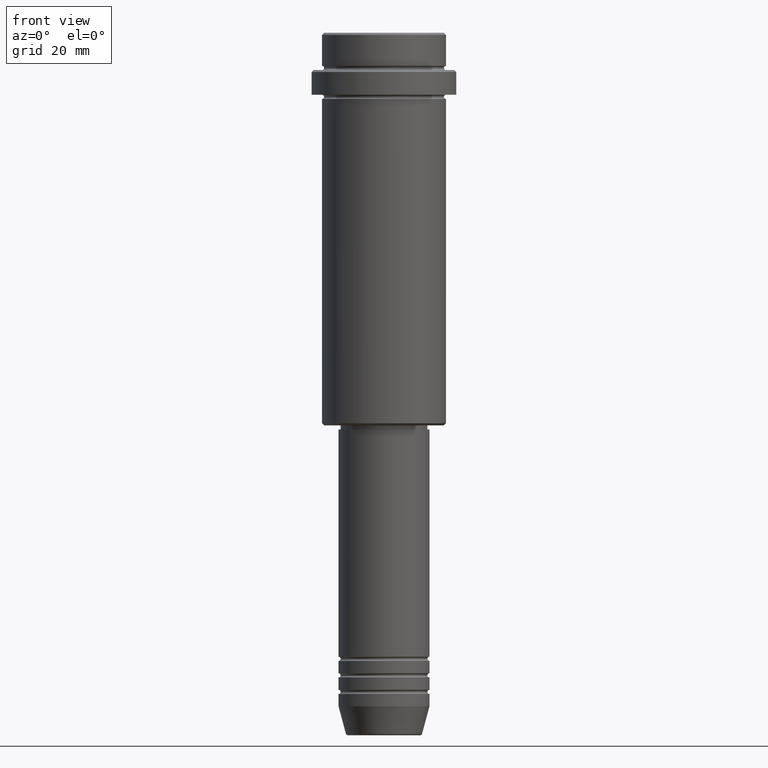
[diagram: clean part render]
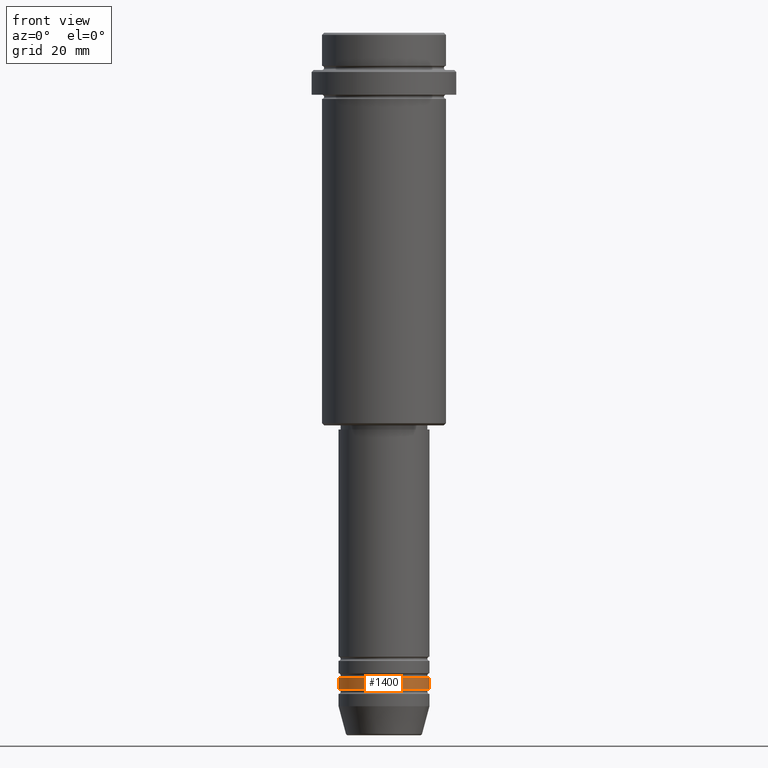
[diagram: same view with one face highlighted and labeled with its STEP entity id]
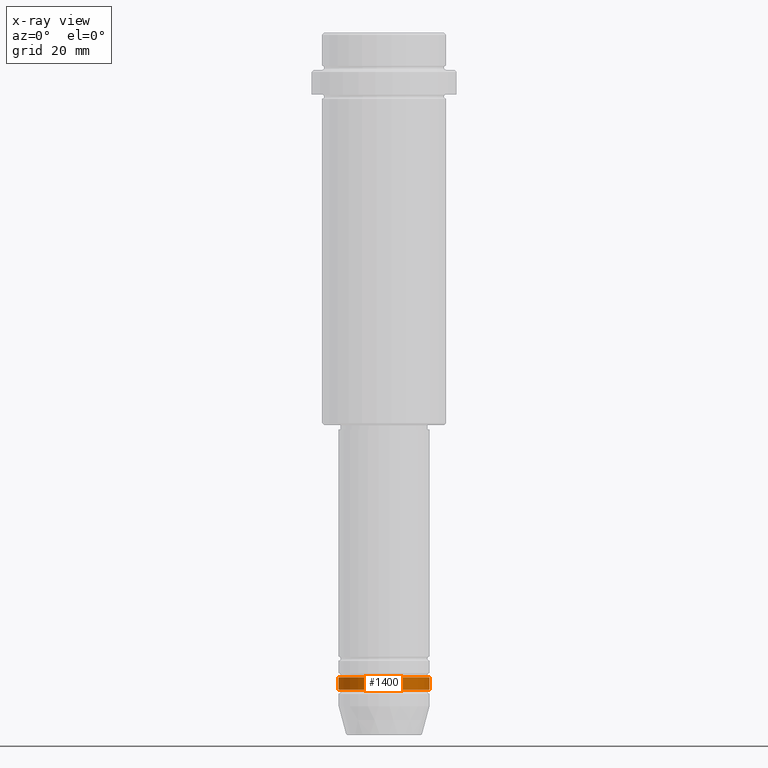
[diagram: x-ray of the same camera — body ghosted, the highlighted face saturated]
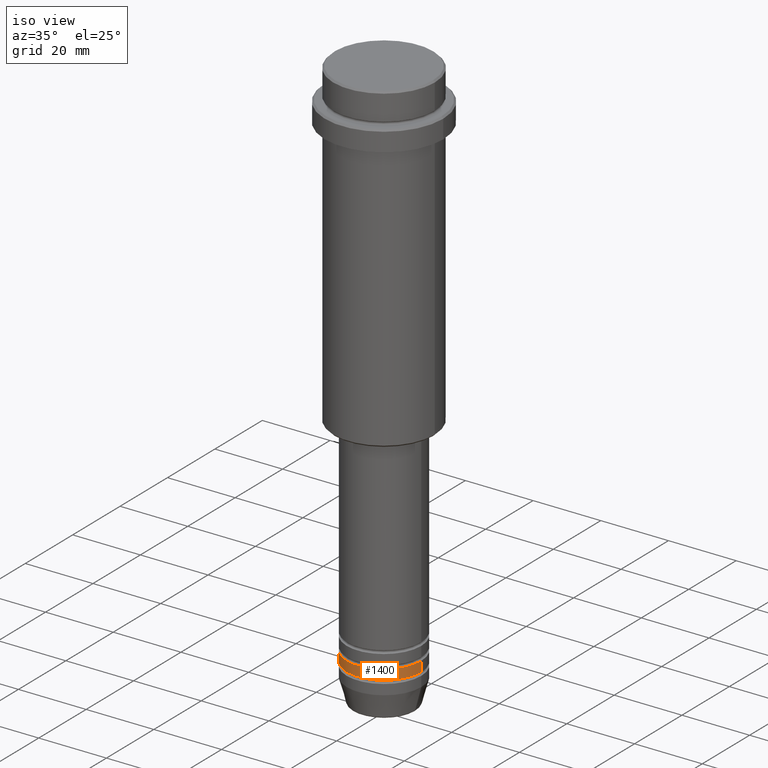
[diagram: same view with one face highlighted and labeled with its STEP entity id]
A machine part, front view. The second image highlights one B-rep face of the part: STEP entity #1400.
The next image is the same camera in x-ray: the body ghosted, the highlighted face saturated — about 0% of this face is hidden behind the body in this view.
A second angle (iso view) of the same face is appended — the face is thin or edge-on in the first view.
In plain terms, the highlighted cylindrical surface (partial cylindrical patch) has radius 11 mm, axis along (-0, -0, 1).
Its self-contained STEP definition (entity closure, byte-faithful):
#7 = DIRECTION ( 'NONE',  ( 1.000000000000000000, 0.000000000000000000, 0.000000000000000000 ) ) ;
#8 = ORIENTED_EDGE ( 'NONE', *, *, #1131, .F. ) ;
#10 = EDGE_CURVE ( 'NONE', #766, #819, #144, .T. ) ;
#62 = VERTEX_POINT ( 'NONE', #233 ) ;
#63 = LINE ( 'NONE', #298, #1298 ) ;
#144 = LINE ( 'NONE', #904, #696 ) ;
#227 = DIRECTION ( 'NONE',  ( -0.000000000000000000, -0.000000000000000000, 1.000000000000000000 ) ) ;
#233 = CARTESIAN_POINT ( 'NONE',  ( 11.00000000000000000, 0.000000000000000000, -155.9999999999999147 ) ) ;
#297 = ORIENTED_EDGE ( 'NONE', *, *, #994, .T. ) ;
#298 = CARTESIAN_POINT ( 'NONE',  ( 11.00000000000000000, 0.000000000000000000, 0.000000000000000000 ) ) ;
#356 = DIRECTION ( 'NONE',  ( 1.000000000000000000, 0.000000000000000000, 0.000000000000000000 ) ) ;
#453 = EDGE_CURVE ( 'NONE', #766, #802, #1302, .T. ) ;
#465 = ORIENTED_EDGE ( 'NONE', *, *, #10, .F. ) ;
#525 = CARTESIAN_POINT ( 'NONE',  ( 0.000000000000000000, 0.000000000000000000, -155.9999999999999147 ) ) ;
#563 = CIRCLE ( 'NONE', #1093, 11.00000000000000000 ) ;
#570 = EDGE_LOOP ( 'NONE', ( #465, #1103, #297, #8 ) ) ;
#591 = CARTESIAN_POINT ( 'NONE',  ( -11.00000000000000000, 1.347111479062088405E-15, -155.9999999999999147 ) ) ;
#677 = DIRECTION ( 'NONE',  ( -0.000000000000000000, -0.000000000000000000, 1.000000000000000000 ) ) ;
#696 = VECTOR ( 'NONE', #677, 1000.000000000000000 ) ;
#766 = VERTEX_POINT ( 'NONE', #888 ) ;
#777 = AXIS2_PLACEMENT_3D ( 'NONE', #836, #941, #851 ) ;
#802 = VERTEX_POINT ( 'NONE', #1008 ) ;
#819 = VERTEX_POINT ( 'NONE', #591 ) ;
#836 = CARTESIAN_POINT ( 'NONE',  ( 0.000000000000000000, 0.000000000000000000, 0.000000000000000000 ) ) ;
#851 = DIRECTION ( 'NONE',  ( 1.000000000000000000, 0.000000000000000000, 0.000000000000000000 ) ) ;
#888 = CARTESIAN_POINT ( 'NONE',  ( -11.00000000000000000, 1.347111479062088405E-15, -158.9999999999999147 ) ) ;
#904 = CARTESIAN_POINT ( 'NONE',  ( -11.00000000000000000, 1.347111479062088405E-15, 0.000000000000000000 ) ) ;
#941 = DIRECTION ( 'NONE',  ( -0.000000000000000000, -0.000000000000000000, 1.000000000000000000 ) ) ;
#994 = EDGE_CURVE ( 'NONE', #802, #62, #63, .T. ) ;
#1008 = CARTESIAN_POINT ( 'NONE',  ( 11.00000000000000000, 0.000000000000000000, -158.9999999999999147 ) ) ;
#1014 = CARTESIAN_POINT ( 'NONE',  ( 0.000000000000000000, 0.000000000000000000, -158.9999999999999147 ) ) ;
#1056 = FACE_OUTER_BOUND ( 'NONE', #570, .T. ) ;
#1093 = AXIS2_PLACEMENT_3D ( 'NONE', #525, #227, #7 ) ;
#1103 = ORIENTED_EDGE ( 'NONE', *, *, #453, .T. ) ;
#1131 = EDGE_CURVE ( 'NONE', #819, #62, #563, .T. ) ;
#1154 = CYLINDRICAL_SURFACE ( 'NONE', #777, 11.00000000000000000 ) ;
#1298 = VECTOR ( 'NONE', #1396, 1000.000000000000000 ) ;
#1302 = CIRCLE ( 'NONE', #1409, 11.00000000000000000 ) ;
#1340 = DIRECTION ( 'NONE',  ( -0.000000000000000000, -0.000000000000000000, 1.000000000000000000 ) ) ;
#1396 = DIRECTION ( 'NONE',  ( -0.000000000000000000, -0.000000000000000000, 1.000000000000000000 ) ) ;
#1400 = ADVANCED_FACE ( 'NONE', ( #1056 ), #1154, .T. ) ;
#1409 = AXIS2_PLACEMENT_3D ( 'NONE', #1014, #1340, #356 ) ;